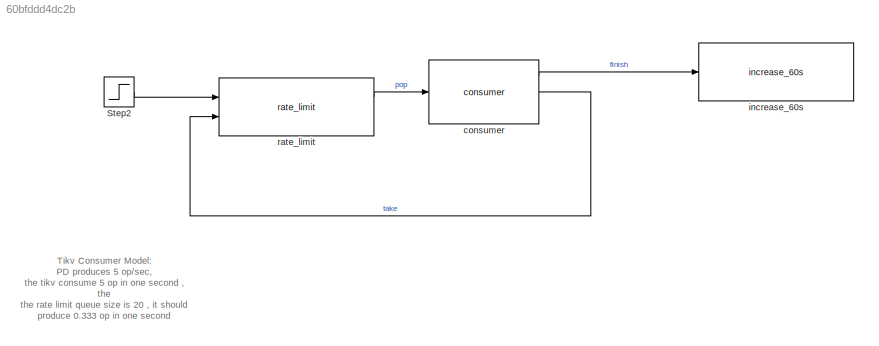
MODEL slx_60bfddd4dc2b
KIND model
CONFIG AbsTol = auto
CONFIG EnableMultiTasking = off
CONFIG FixedStep = auto
CONFIG MaxStep = auto
CONFIG MinStep = auto
CONFIG RelTol = 1e-3
CONFIG SampleTimeConstraint = Unconstrained
CONFIG SolverName = VariableStepAuto
CONFIG StartTime = 0.0
CONFIG StopTime = 1000
WORKSPACE source: mxarray member
WORKSPACE Ts = 0.1
BLOCK [Step] Step2
  After = -1
  Before = 1
  SampleTime = 0
  Time = 500
BLOCK [Reference] consumer  REF=pingcap/consumer  (lib defined in slx_86c26b565c1c)
  Ports = [1, 3]
  SourceBlock = pingcap/consumer
BLOCK [Reference] increase_60s  REF=pingcap/increase_60s  (lib defined in slx_86c26b565c1c)
  Ports = [1, 1]
  SourceBlock = pingcap/increase_60s
BLOCK [Reference] rate_limit  REF=pingcap/rate_limit  (lib defined in slx_86c26b565c1c)
  Ports = [2, 2]
  SourceBlock = pingcap/rate_limit
ANNOTATION (root): Tikv Consumer Model: PD produces 5 op/sec, the tikv consume 5 op in one second , the the rate limit queue size is 20 , it should produce 0.333 op in one second
LINE Step2:1 -> rate_limit:1
LINE consumer:1 -> increase_60s:1
LINE consumer:2 -> rate_limit:2
LINE rate_limit:1 -> consumer:1
